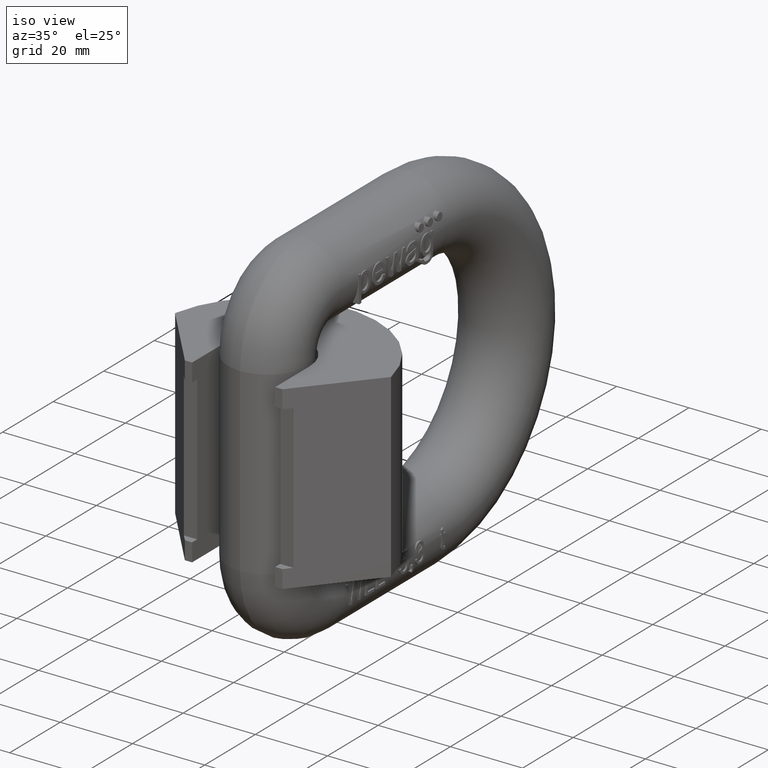
[diagram: clean part render]
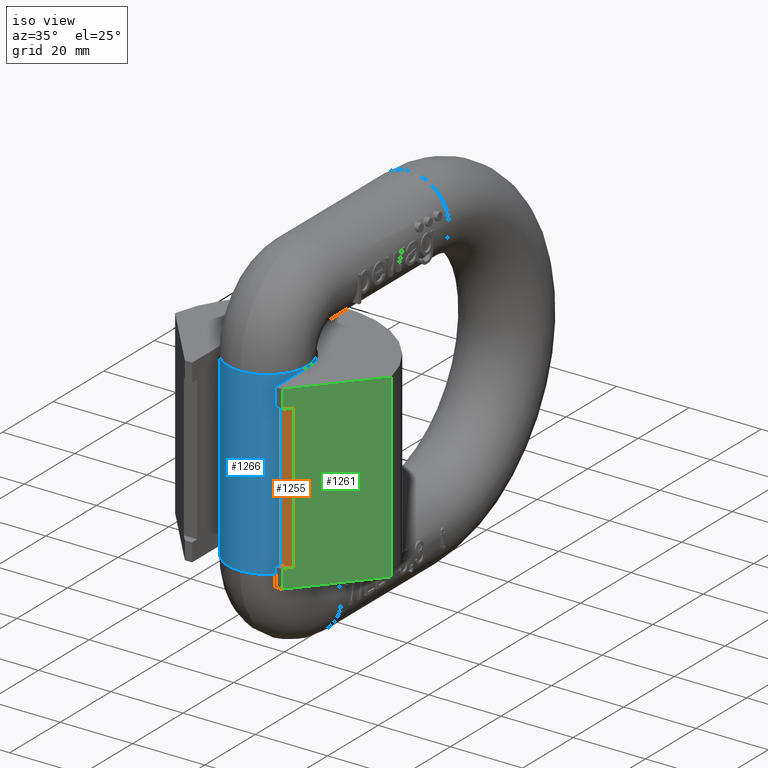
[diagram: same view with three faces highlighted in distinct colors, each labeled with its STEP entity id]
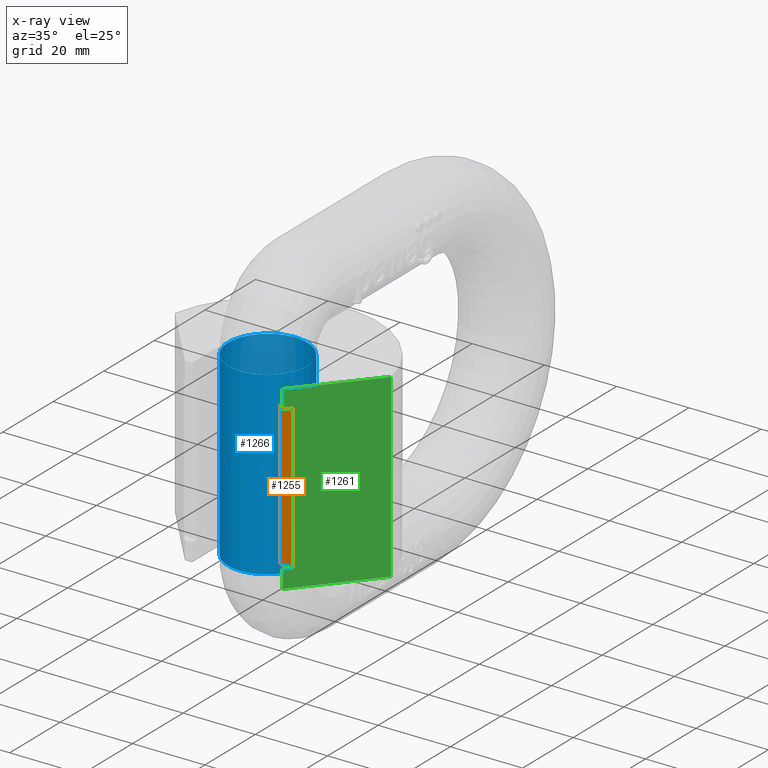
[diagram: x-ray of the same camera — body ghosted, the three highlighted faces saturated]
A machine part, iso view with three faces highlighted in distinct colors.
The next image is the same camera in x-ray (body ghosted, the three faces saturated) — at least one of them is partly hidden behind the body in this view.
Their STEP definitions:

[orange] entity #1255 — the highlighted planar face has unit normal (0, -1, 0).
#1038=PLANE('',#7605);
#1255=ADVANCED_FACE('',(#1682),#1038,.T.);
#1682=FACE_OUTER_BOUND('',#2070,.T.);
#2070=EDGE_LOOP('',(#2628,#2629,#2630,#2631));
#2628=ORIENTED_EDGE('',*,*,#5485,.T.);
#2629=ORIENTED_EDGE('',*,*,#5490,.T.);
#2630=ORIENTED_EDGE('',*,*,#5489,.F.);
#2631=ORIENTED_EDGE('',*,*,#5491,.T.);
#4756=VERTEX_POINT('',#9339);
#4757=VERTEX_POINT('',#9341);
#4758=VERTEX_POINT('',#9345);
#4759=VERTEX_POINT('',#9347);
#5485=EDGE_CURVE('',#4757,#4756,#6555,.T.);
#5489=EDGE_CURVE('',#4759,#4758,#6559,.T.);
#5490=EDGE_CURVE('',#4756,#4758,#6560,.T.);
#5491=EDGE_CURVE('',#4759,#4757,#6561,.T.);
#6555=LINE('',#9340,#7003);
#6559=LINE('',#9348,#7007);
#6560=LINE('',#9350,#7008);
#6561=LINE('',#9351,#7009);
#7003=VECTOR('',#8000,1.);
#7007=VECTOR('',#8006,1.);
#7008=VECTOR('',#8009,1.);
#7009=VECTOR('',#8010,1.);
#7605=AXIS2_PLACEMENT_3D('',#9352,#8011,#8012);
#8000=DIRECTION('',(1.,3.69695167011451E-16,0.));
#8006=DIRECTION('',(1.,3.69695167011451E-16,0.));
#8009=DIRECTION('',(0.,0.,1.));
#8010=DIRECTION('',(0.,0.,-1.));
#8011=DIRECTION('',(3.69695167011451E-16,-1.,0.));
#8012=DIRECTION('',(1.,3.6949610038306E-16,0.));
#9339=CARTESIAN_POINT('',(15.1781992623546,1.99999999999999,-20.));
#9340=CARTESIAN_POINT('',(30.5,2.,-20.));
#9341=CARTESIAN_POINT('',(11.5,2.,-20.));
#9345=CARTESIAN_POINT('',(15.1781992623546,1.99999999999999,20.));
#9347=CARTESIAN_POINT('',(11.5,1.99999999999999,20.));
#9348=CARTESIAN_POINT('',(30.5,2.,20.));
#9350=CARTESIAN_POINT('',(15.1781992623546,1.99999999999999,20.));
#9351=CARTESIAN_POINT('',(11.5,1.99999999999999,25.));
#9352=CARTESIAN_POINT('',(30.5,2.,20.));

[blue] entity #1266 — the highlighted cylindrical surface (bore or boss wall) has radius 11 mm, axis along (0, 0, 1).
#975=FACE_BOUND('',#2118,.T.);
#976=FACE_BOUND('',#2119,.T.);
#1266=ADVANCED_FACE('',(#975,#976),#1657,.T.);
#1657=CYLINDRICAL_SURFACE('',#7718,11.);
#2118=EDGE_LOOP('',(#2992));
#2119=EDGE_LOOP('',(#2993));
#2570=CIRCLE('',#7715,11.);
#2571=CIRCLE('',#7717,11.);
#2992=ORIENTED_EDGE('',*,*,#5813,.T.);
#2993=ORIENTED_EDGE('',*,*,#5812,.F.);
#5074=VERTEX_POINT('',#12177);
#5075=VERTEX_POINT('',#12180);
#5812=EDGE_CURVE('',#5074,#5074,#2570,.T.);
#5813=EDGE_CURVE('',#5075,#5075,#2571,.T.);
#7715=AXIS2_PLACEMENT_3D('',#12176,#8303,#8304);
#7717=AXIS2_PLACEMENT_3D('',#12179,#8307,#8308);
#7718=AXIS2_PLACEMENT_3D('',#12181,#8309,#8310);
#8303=DIRECTION('',(0.,-3.00267028284661E-15,1.));
#8304=DIRECTION('',(0.,-1.,-3.15404268359419E-15));
#8307=DIRECTION('',(0.,-3.00267028284661E-15,1.));
#8308=DIRECTION('',(0.,-1.,-3.15404268359419E-15));
#8309=DIRECTION('',(0.,0.,1.));
#8310=DIRECTION('',(1.,0.,0.));
#12176=CARTESIAN_POINT('',(0.,13.5,25.));
#12177=CARTESIAN_POINT('',(0.,2.50000000000001,24.9999999999999));
#12179=CARTESIAN_POINT('',(0.,13.5,-25.));
#12180=CARTESIAN_POINT('',(0.,2.50000000000001,-25.0000000000001));
#12181=CARTESIAN_POINT('',(0.,13.5,-25.));

[green] entity #1261 — the highlighted planar face has unit normal (0.766, -0.6428, 0).
#1043=PLANE('',#7611);
#1261=ADVANCED_FACE('',(#1688),#1043,.T.);
#1688=FACE_OUTER_BOUND('',#2076,.T.);
#2076=EDGE_LOOP('',(#2660,#2661,#2662,#2663,#2664,#2665,#2666,#2667));
#2660=ORIENTED_EDGE('',*,*,#5460,.T.);
#2661=ORIENTED_EDGE('',*,*,#5481,.T.);
#2662=ORIENTED_EDGE('',*,*,#5487,.T.);
#2663=ORIENTED_EDGE('',*,*,#5490,.F.);
#2664=ORIENTED_EDGE('',*,*,#5484,.F.);
#2665=ORIENTED_EDGE('',*,*,#5478,.T.);
#2666=ORIENTED_EDGE('',*,*,#5463,.F.);
#2667=ORIENTED_EDGE('',*,*,#5452,.T.);
#4730=VERTEX_POINT('',#9272);
#4731=VERTEX_POINT('',#9274);
#4737=VERTEX_POINT('',#9288);
#4740=VERTEX_POINT('',#9296);
#4752=VERTEX_POINT('',#9327);
#4754=VERTEX_POINT('',#9333);
#4756=VERTEX_POINT('',#9339);
#4758=VERTEX_POINT('',#9345);
#5452=EDGE_CURVE('',#4731,#4730,#6525,.T.);
#5460=EDGE_CURVE('',#4730,#4737,#6531,.T.);
#5463=EDGE_CURVE('',#4731,#4740,#6534,.T.);
#5478=EDGE_CURVE('',#4752,#4740,#6548,.T.);
#5481=EDGE_CURVE('',#4737,#4754,#6551,.T.);
#5484=EDGE_CURVE('',#4752,#4756,#6554,.T.);
#5487=EDGE_CURVE('',#4754,#4758,#6557,.T.);
#5490=EDGE_CURVE('',#4756,#4758,#6560,.T.);
#6525=LINE('',#9273,#6973);
#6531=LINE('',#9289,#6979);
#6534=LINE('',#9295,#6982);
#6548=LINE('',#9326,#6996);
#6551=LINE('',#9332,#6999);
#6554=LINE('',#9338,#7002);
#6557=LINE('',#9344,#7005);
#6560=LINE('',#9350,#7008);
#6973=VECTOR('',#7948,1.);
#6979=VECTOR('',#7960,1.);
#6982=VECTOR('',#7965,1.);
#6996=VECTOR('',#7989,1.);
#6999=VECTOR('',#7994,1.);
#7002=VECTOR('',#7999,1.);
#7005=VECTOR('',#8004,1.);
#7008=VECTOR('',#8009,1.);
#7611=AXIS2_PLACEMENT_3D('',#9364,#8029,#8030);
#7948=DIRECTION('',(0.,0.,1.));
#7960=DIRECTION('',(-0.64278760968654,-0.766044443118978,0.));
#7965=DIRECTION('',(-0.64278760968654,-0.766044443118978,0.));
#7989=DIRECTION('',(0.,0.,-1.));
#7994=DIRECTION('',(0.,0.,-1.));
#7999=DIRECTION('',(0.64278760968654,0.766044443118978,0.));
#8004=DIRECTION('',(0.64278760968654,0.766044443118978,0.));
#8009=DIRECTION('',(0.,0.,1.));
#8029=DIRECTION('',(0.766044443118978,-0.642787609686539,0.));
#8030=DIRECTION('',(0.64278760968654,0.766044443118978,0.));
#9272=CARTESIAN_POINT('',(29.8959687524467,19.5399546647908,25.));
#9273=CARTESIAN_POINT('',(29.8959687524467,19.5399546647908,25.));
#9274=CARTESIAN_POINT('',(29.8959687524467,19.5399546647908,-25.));
#9288=CARTESIAN_POINT('',(13.5,0.,25.));
#9289=CARTESIAN_POINT('',(14.5695775320842,1.27467286641937,25.));
#9295=CARTESIAN_POINT('',(14.5695775320842,1.27467286641937,-25.));
#9296=CARTESIAN_POINT('',(13.5,0.,-25.));
#9326=CARTESIAN_POINT('',(13.5,0.,27.5000275));
#9327=CARTESIAN_POINT('',(13.5,0.,-20.));
#9332=CARTESIAN_POINT('',(13.5,0.,27.5000275));
#9333=CARTESIAN_POINT('',(13.5,0.,20.));
#9338=CARTESIAN_POINT('',(7.92212519925178,-6.6474523328324,-20.));
#9339=CARTESIAN_POINT('',(15.1781992623546,1.99999999999999,-20.));
#9344=CARTESIAN_POINT('',(7.92212519925178,-6.6474523328324,20.));
#9345=CARTESIAN_POINT('',(15.1781992623546,1.99999999999999,20.));
#9350=CARTESIAN_POINT('',(15.1781992623546,1.99999999999999,20.));
#9364=CARTESIAN_POINT('',(30.5,20.2598110741016,27.5000275));